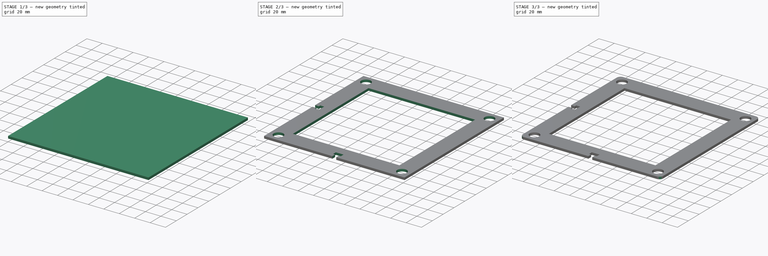
[diagram: build sequence overview — one tinted view per stage of 3, left to right]
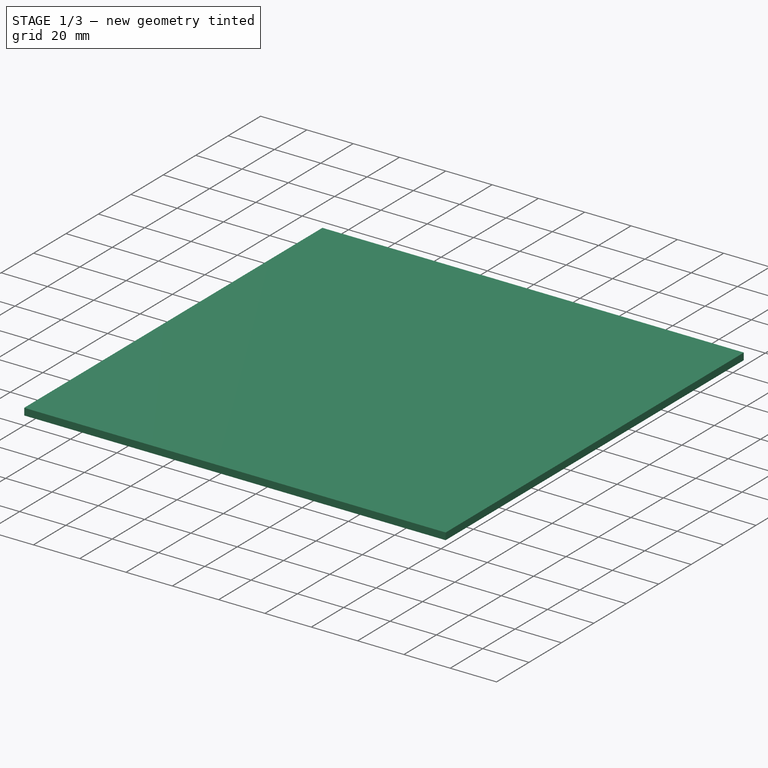
[diagram: stage 1 of 3 — iso view after this stage's code; geometry added in this stage tinted green]
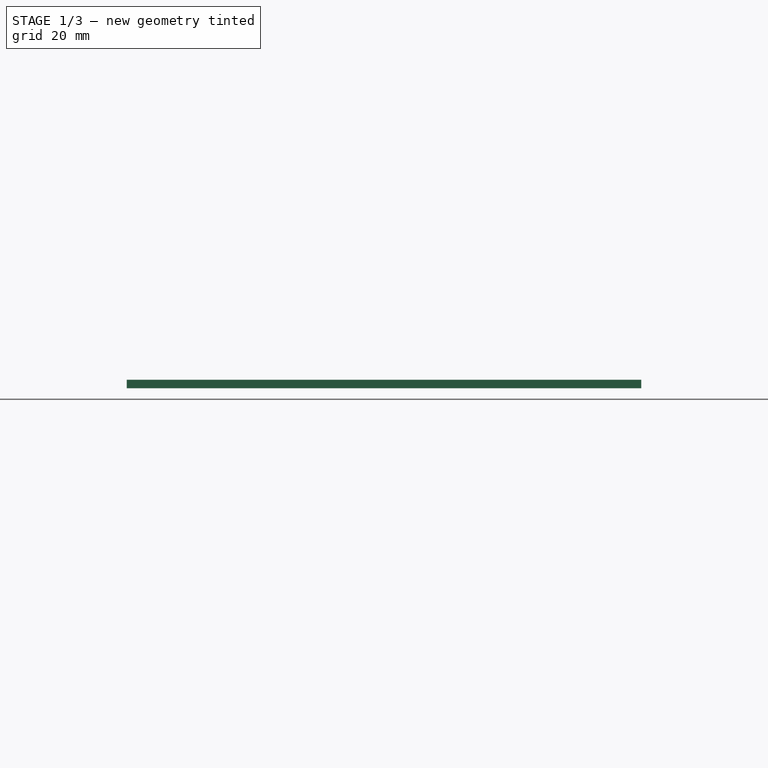
[diagram: stage 1 of 3 — front view after this stage's code; geometry added in this stage tinted green]
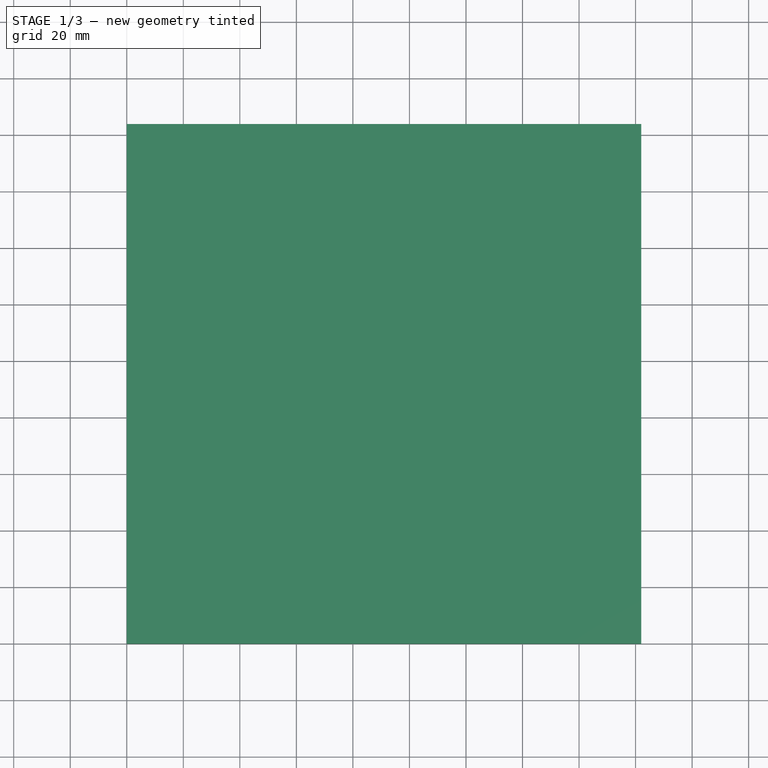
[diagram: stage 1 of 3 — top view after this stage's code; geometry added in this stage tinted green]
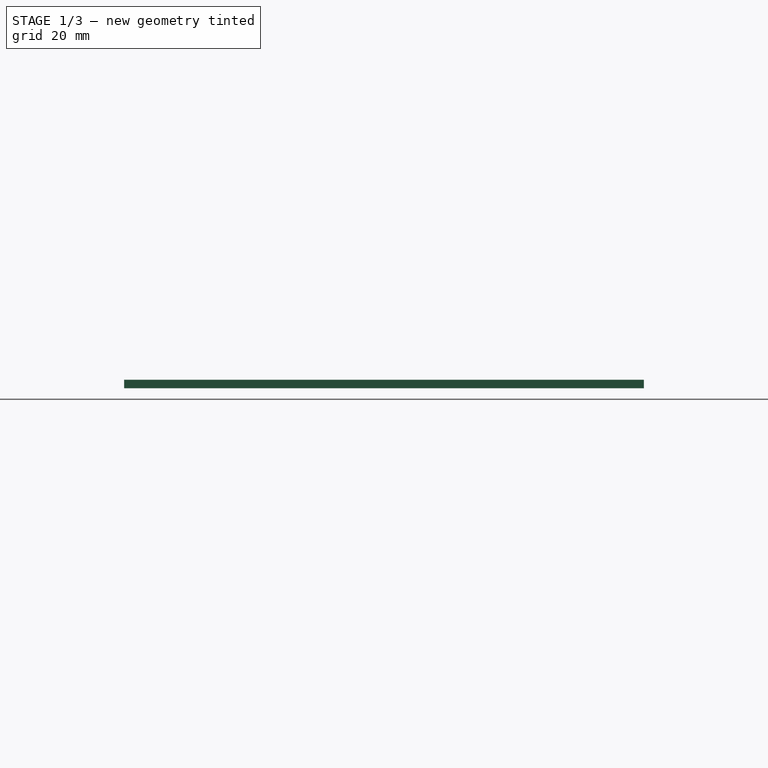
[diagram: stage 1 of 3 — right view after this stage's code; geometry added in this stage tinted green]
FCSTD DOCUMENT  (FreeCAD 0.17R13541 (Git))
Label: PrintingLayout
License: Other
LicenseURL: https://www.gnu.org/licenses/gpl-2.0.html
objects: Part::Feature×13, Sketcher::SketchObject×3, PartDesign::Pocket×3, Part::MultiFuse×2, Part::FeaturePython×2, PartDesign::Body×2, Part::Box×1, PartDesign::FeatureBase×1, Part::Fillet×1
note: 31 computed .brp shape members not serialized (recipe doc carries the construction recipe); baked Part::Feature solids carry a one-line shape summary decoded from their .brp

FEATURE [Part::Box] Box  label="Cube"
  AttacherType = Attacher::AttachEngine3D
  Height = 3
  Length = 182
  Width = 183.9
FEATURE [PartDesign::FeatureBase] BaseFeature
  BaseFeature = -> Box
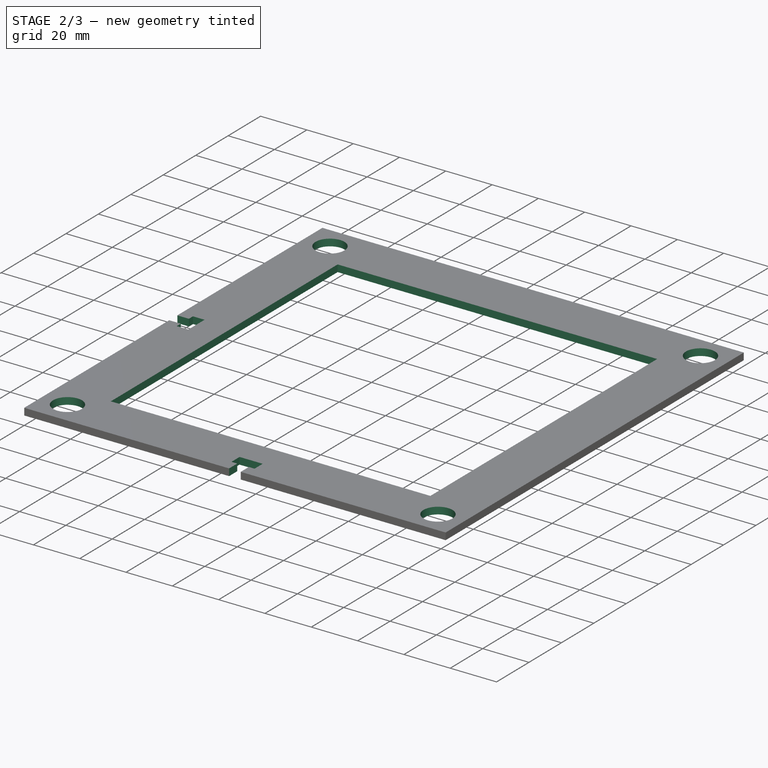
[diagram: stage 2 of 3 — iso view after this stage's code; geometry added in this stage tinted green]
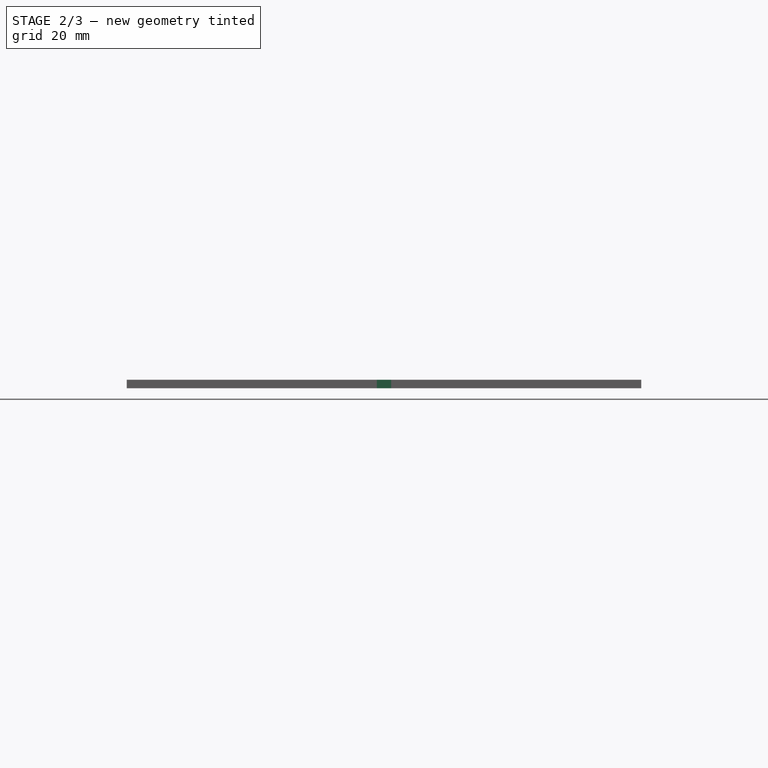
[diagram: stage 2 of 3 — front view after this stage's code; geometry added in this stage tinted green]
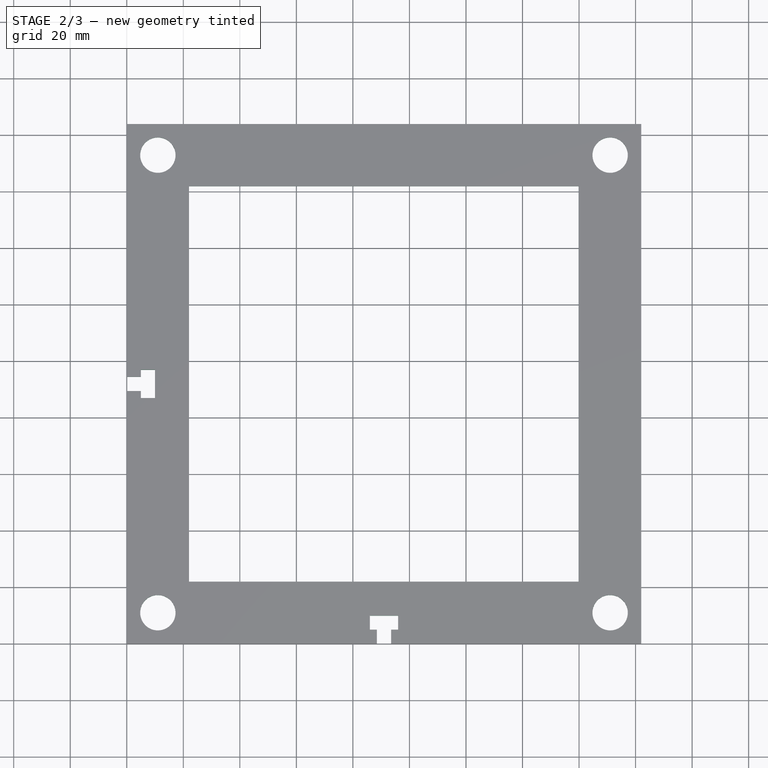
[diagram: stage 2 of 3 — top view after this stage's code; geometry added in this stage tinted green]
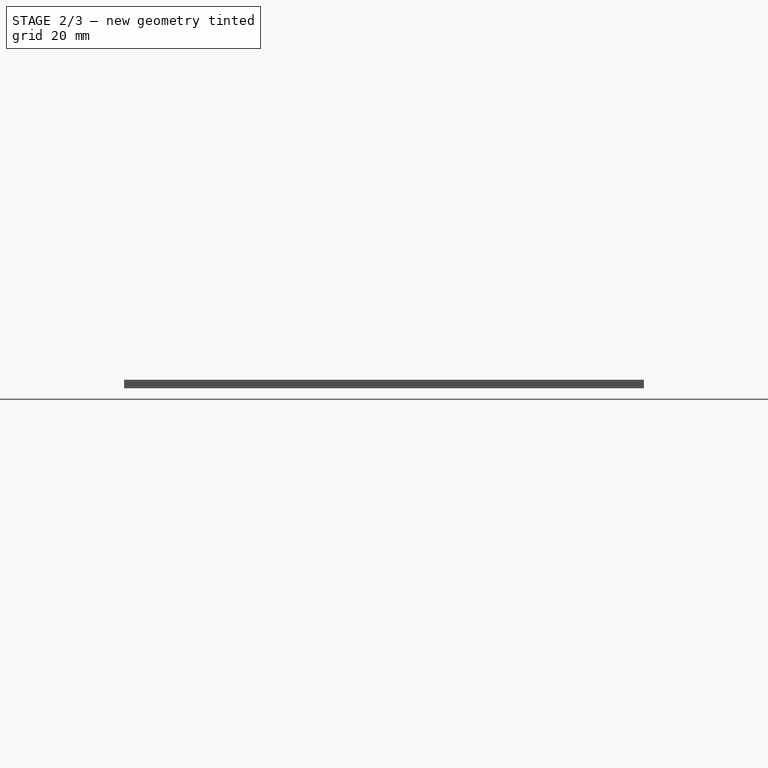
[diagram: stage 2 of 3 — right view after this stage's code; geometry added in this stage tinted green]
FEATURE [Sketcher::SketchObject] Sketch
  ExternalGeometry = -> [BaseFeature]
  MapMode = 5
  Placement = pos=(0,0,3) rot=(0,0,1;0rad)
  Support = -> [BaseFeature]
  sketch-geometry (30):
    g0: GeomPoint X=11 Y=172.9 Z=0
    g1: GeomPoint X=171 Y=172.9 Z=0
    g2: GeomPoint X=11 Y=11 Z=0
    g3: GeomPoint X=171 Y=11 Z=0
    g4: Circle CenterX=171 CenterY=172.9 CenterZ=0 NormalX=0 NormalY=0 NormalZ=1 AngleXU=0 Radius=6.25
    g5: Circle CenterX=11 CenterY=172.9 CenterZ=0 NormalX=0 NormalY=0 NormalZ=1 AngleXU=0 Radius=6.25
    g6: Circle CenterX=11 CenterY=11 CenterZ=0 NormalX=0 NormalY=0 NormalZ=1 AngleXU=0 Radius=6.25
    g7: Circle CenterX=171 CenterY=11 CenterZ=0 NormalX=0 NormalY=0 NormalZ=1 AngleXU=0 Radius=6.25
    g8: LineSegment StartX=22 StartY=161.9 StartZ=0 EndX=22 EndY=22 EndZ=0
    g9: LineSegment StartX=22 StartY=22 StartZ=0 EndX=160 EndY=22 EndZ=0
    g10: LineSegment StartX=160 StartY=22 StartZ=0 EndX=160 EndY=161.9 EndZ=0
    g11: LineSegment StartX=160 StartY=161.9 StartZ=0 EndX=22 EndY=161.9 EndZ=0
    g12: GeomPoint X=0 Y=91.95 Z=0
    g13: GeomPoint X=91 Y=0 Z=0
    g14: LineSegment StartX=0 StartY=89.45 StartZ=0 EndX=0 EndY=94.45 EndZ=0
    g15: LineSegment StartX=0 StartY=94.45 StartZ=0 EndX=5 EndY=94.45 EndZ=0
    g16: LineSegment StartX=5 StartY=94.45 StartZ=0 EndX=5 EndY=96.95 EndZ=0
    g17: LineSegment StartX=5 StartY=96.95 StartZ=0 EndX=10 EndY=96.95 EndZ=0
    g18: LineSegment StartX=10 StartY=96.95 StartZ=0 EndX=10 EndY=86.95 EndZ=0
    g19: LineSegment StartX=10 StartY=86.95 StartZ=0 EndX=5 EndY=86.95 EndZ=0
    g20: LineSegment StartX=5 StartY=86.95 StartZ=0 EndX=5 EndY=89.45 EndZ=0
    g21: LineSegment StartX=5 StartY=89.45 StartZ=0 EndX=0 EndY=89.45 EndZ=0
    g22: LineSegment StartX=93.5 StartY=0 StartZ=0 EndX=88.5 EndY=0 EndZ=0
    g23: LineSegment StartX=88.5 StartY=0 StartZ=0 EndX=88.5 EndY=5 EndZ=0
    g24: LineSegment StartX=88.5 StartY=5 StartZ=0 EndX=86 EndY=5 EndZ=0
    g25: LineSegment StartX=86 StartY=5 StartZ=0 EndX=86 EndY=10 EndZ=0
    g26: LineSegment StartX=86 StartY=10 StartZ=0 EndX=96 EndY=10 EndZ=0
    g27: LineSegment StartX=96 StartY=10 StartZ=0 EndX=96 EndY=5 EndZ=0
    g28: LineSegment StartX=96 StartY=5 StartZ=0 EndX=93.5 EndY=5 EndZ=0
    g29: LineSegment StartX=93.5 StartY=5 StartZ=0 EndX=93.5 EndY=0 EndZ=0
  constraints (78):
    c: DistanceX(g1,g-5) = 11
    c: DistanceY(g1,g-5) = 11
    c: Coincident(g1,g4)
    c: DistanceY(g-6,g3) = 11
    c: DistanceX(g3,g-6) = 11
    c: DistanceX(g-1,g2) = 11
    c: DistanceY(g-1,g2) = 11
    c: DistanceX(g-4,g0) = 11
    c: DistanceY(g0,g-4) = 11
    c: Coincident(g5,g0)
    c: Radius(g5) = 6.25
    c: Coincident(g6,g2)
    c: Coincident(g7,g3)
    c: Coincident(g8,g9)
    c: Coincident(g9,g10)
    c: Coincident(g10,g11)
    c: Coincident(g11,g8)
    c: DistanceY(g8,g0) = 11
    c: DistanceX(g0,g8) = 11
    c: DistanceX(g10,g1) = 11
    c: DistanceY(g10,g1) = 11
    c: DistanceY(g2,g8) = 11
    c: DistanceX(g2,g8) = 11
    c: DistanceX(g9,g3) = 11
    c: DistanceY(g3,g9) = 11
    c: Equal(g5,g4)
    c: Equal(g4,g6)
    c: Equal(g6,g7)
    c: Symmetric(g-1,g-4,g12)
    c: Symmetric(g-1,g-6,g13)
    c: Coincident(g14,g15)
    c: Coincident(g15,g16)
    c: Vertical(g16)
    c: Coincident(g16,g17)
    c: Coincident(g17,g18)
    c: Vertical(g18)
    c: Coincident(g18,g19)
    c: Horizontal(g19)
    c: Coincident(g19,g20)
    c: Coincident(g20,g21)
    c: Coincident(g21,g14)
    c: Horizontal(g21)
    c: PointOnObject(g14,g-4)
    c: PointOnObject(g14,g-4)
    c: Equal(g21,g15)
    c: Equal(g19,g17)
    c: Horizontal(g17)
    c: Symmetric(g14,g14,g12)
    c: Coincident(g22,g23)
    c: Coincident(g23,g24)
    c: Coincident(g24,g25)
    c: Coincident(g25,g26)
    c: Coincident(g26,g27)
    c: Coincident(g27,g28)
    c: Coincident(g28,g29)
    c: Coincident(g29,g22)
    c: Horizontal(g26)
    c: Vertical(g27)
    c: Vertical(g25)
    c: Vertical(g29)
    c: Vertical(g23)
    c: Horizontal(g22)
    c: Horizontal(g28)
    c: Horizontal(g24)
    c: Equal(g27,g25)
    c: Equal(g29,g23)
    c: Equal(g28,g24)
    c: DistanceY(g27,g27) = 5
    c: DistanceY(g29,g29) = 5
    c: DistanceX(g26,g26) = 10
    c: DistanceX(g22,g22) = 5
    c: Symmetric(g22,g22,g13)
    c: Equal(g16,g20)
    c: DistanceX(g15,g15) = 5
    c: DistanceX(g17,g17) = 5
    c: DistanceY(g18,g18) = 10
    c: DistanceY(g14,g14) = 5
    c: Vertical(g20)
FEATURE [PartDesign::Pocket] Pocket
  BaseFeature = -> BaseFeature
  Length = 5
  Length2 = 100
  Profile = -> Sketch
  Type = 1
FEATURE [Part::Feature] path5215
  shape: bbox 3.575 x 6.158 x 2.133e-07 mm, 1 faces, 0 solids (baked)
FEATURE [Part::Feature] path5215001
  shape: bbox 8.492 x 6.158 x 2.133e-07 mm, 1 faces, 0 solids (baked)
FEATURE [Part::Feature] path5215002
  shape: bbox 15.48 x 6.158 x 2.133e-07 mm, 1 faces, 0 solids (baked)
FEATURE [Part::Feature] path5215003
  shape: bbox 67.73 x 6.158 x 2.133e-07 mm, 1 faces, 0 solids (baked)
FEATURE [Part::Feature] path5215004
  shape: bbox 29.31 x 6.158 x 2.133e-07 mm, 1 faces, 0 solids (baked)
FEATURE [Part::Feature] path5215005
  shape: bbox 4.886 x 6.158 x 2.133e-07 mm, 1 faces, 0 solids (baked)
FEATURE [Part::MultiFuse] Fusion
  Placement = pos=(36.6,-79,3) rot=(0,0,1;1.5708rad)
  Shapes = -> [path5215005,path5215004,path5215003,path5215002,path5215001,path5215]
FEATURE [Part::FeaturePython] Scale  # Draft clone (typed FeaturePython)
  Fuse = false
  Objects = -> [Fusion]
  Placement = pos=(27.3,22.1,3) rot=(0,0,1;0rad)
  Scale = (0.3,0.3,1)
FEATURE [Part::FeaturePython] Scale001  # Draft clone (typed FeaturePython)
  Fuse = false
  Objects = -> [Scale]
  Placement = pos=(163.8,39.3,5) rot=(0,0,1;0rad)
  Scale = (0.7,0.7,1)
FEATURE [Sketcher::SketchObject] Sketch001
  sketch-geometry (33):
    g0: BSplineCurve PolesCount=4 KnotsCount=2 Degree=3 IsPeriodic=0
    g1: BSplineCurve PolesCount=4 KnotsCount=2 Degree=3 IsPeriodic=0
    g2: BSplineCurve PolesCount=4 KnotsCount=2 Degree=3 IsPeriodic=0
    g3: BSplineCurve PolesCount=4 KnotsCount=2 Degree=3 IsPeriodic=0
    g4: BSplineCurve PolesCount=2 KnotsCount=2 Degree=1 IsPeriodic=0
    g5: BSplineCurve PolesCount=4 KnotsCount=2 Degree=3 IsPeriodic=0
    g6: BSplineCurve PolesCount=4 KnotsCount=2 Degree=3 IsPeriodic=0
    g7: BSplineCurve PolesCount=2 KnotsCount=2 Degree=1 IsPeriodic=0
    g8: BSplineCurve PolesCount=4 KnotsCount=2 Degree=3 IsPeriodic=0
    g9: BSplineCurve PolesCount=4 KnotsCount=2 Degree=3 IsPeriodic=0
    g10: BSplineCurve PolesCount=2 KnotsCount=2 Degree=1 IsPeriodic=0
    g11: BSplineCurve PolesCount=4 KnotsCount=2 Degree=3 IsPeriodic=0
    g12: BSplineCurve PolesCount=4 KnotsCount=2 Degree=3 IsPeriodic=0
    g13: BSplineCurve PolesCount=4 KnotsCount=2 Degree=3 IsPeriodic=0
    g14: BSplineCurve PolesCount=2 KnotsCount=2 Degree=1 IsPeriodic=0
    g15: BSplineCurve PolesCount=4 KnotsCount=2 Degree=3 IsPeriodic=0
    g16: BSplineCurve PolesCount=4 KnotsCount=2 Degree=3 IsPeriodic=0
    g17: BSplineCurve PolesCount=4 KnotsCount=2 Degree=3 IsPeriodic=0
    g18: BSplineCurve PolesCount=2 KnotsCount=2 Degree=1 IsPeriodic=0
    g19: BSplineCurve PolesCount=4 KnotsCount=2 Degree=3 IsPeriodic=0
    g20: BSplineCurve PolesCount=2 KnotsCount=2 Degree=1 IsPeriodic=0
    g21: BSplineCurve PolesCount=4 KnotsCount=2 Degree=3 IsPeriodic=0
    g22: BSplineCurve PolesCount=2 KnotsCount=2 Degree=1 IsPeriodic=0
    g23: BSplineCurve PolesCount=4 KnotsCount=2 Degree=3 IsPeriodic=0
    g24: BSplineCurve PolesCount=2 KnotsCount=2 Degree=1 IsPeriodic=0
    g25: BSplineCurve PolesCount=4 KnotsCount=2 Degree=3 IsPeriodic=0
    g26: BSplineCurve PolesCount=2 KnotsCount=2 Degree=1 IsPeriodic=0
    g27: BSplineCurve PolesCount=4 KnotsCount=2 Degree=3 IsPeriodic=0
    g28: BSplineCurve PolesCount=4 KnotsCount=2 Degree=3 IsPeriodic=0
    g29: BSplineCurve PolesCount=2 KnotsCount=2 Degree=1 IsPeriodic=0
    g30: BSplineCurve PolesCount=4 KnotsCount=2 Degree=3 IsPeriodic=0
    g31: BSplineCurve PolesCount=4 KnotsCount=2 Degree=3 IsPeriodic=0
    g32: BSplineCurve PolesCount=2 KnotsCount=2 Degree=1 IsPeriodic=0
  constraints (33):
    c: Coincident(g0,g1)
    c: Coincident(g1,g2)
    c: Coincident(g2,g3)
    c: Coincident(g3,g4)
    c: Coincident(g4,g0)
    c: Coincident(g5,g6)
    c: Coincident(g6,g7)
    c: Coincident(g7,g8)
    c: Coincident(g8,g9)
    c: Coincident(g9,g10)
    c: Coincident(g10,g5)
    c: Coincident(g11,g12)
    c: Coincident(g12,g13)
    c: Coincident(g13,g14)
    c: Coincident(g14,g15)
    c: Coincident(g15,g16)
    c: Coincident(g16,g17)
    c: Coincident(g17,g18)
    c: Coincident(g18,g11)
    c: Coincident(g19,g20)
    c: Coincident(g20,g21)
    c: Coincident(g21,g22)
    c: Coincident(g22,g19)
    c: Coincident(g23,g24)
    c: Coincident(g24,g25)
    c: Coincident(g25,g26)
    c: Coincident(g26,g23)
    c: Coincident(g27,g28)
    c: Coincident(g28,g29)
    c: Coincident(g29,g30)
    c: Coincident(g30,g31)
    c: Coincident(g31,g32)
    c: Coincident(g32,g27)
FEATURE [PartDesign::Body] Body001  label="FilletBody"
  Origin = -> Origin001
FEATURE [Part::Feature] path4484
  shape: bbox 1.422 x 3.473 x 2e-07 mm, 0 faces, 0 solids (baked)
FEATURE [Part::Feature] path4484001
  shape: bbox 3.248 x 5.093 x 2e-07 mm, 0 faces, 0 solids (baked)
FEATURE [Part::Feature] path4484002
  shape: bbox 1.396 x 3.44 x 2e-07 mm, 0 faces, 0 solids (baked)
FEATURE [Part::Feature] path4486
  shape: bbox 2.653 x 5.012 x 2e-07 mm, 0 faces, 0 solids (baked)
FEATURE [Part::Feature] path4488
  shape: bbox 2.433 x 0.5108 x 2e-07 mm, 0 faces, 0 solids (baked)
FEATURE [Part::Feature] path4490
  shape: bbox 3.52 x 4.932 x 2e-07 mm, 0 faces, 0 solids (baked)
FEATURE [Part::Feature] path4490001
  shape: bbox 1.073 x 2.242 x 2e-07 mm, 0 faces, 0 solids (baked)
FEATURE [Part::MultiFuse] Fusion001
  Placement = pos=(78,46.5,0) rot=(0,1,0;3.14159rad)
  Shapes = -> [path4490001,path4490,path4488,path4486,path4484002,path4484001,path4484]
FEATURE [Sketcher::SketchObject] Sketch002
  sketch-geometry (75):
    g0: BSplineCurve PolesCount=2 KnotsCount=2 Degree=1 IsPeriodic=0
    g1: BSplineCurve PolesCount=2 KnotsCount=2 Degree=1 IsPeriodic=0
    g2: BSplineCurve PolesCount=2 KnotsCount=2 Degree=1 IsPeriodic=0
    g3: BSplineCurve PolesCount=2 KnotsCount=2 Degree=1 IsPeriodic=0
    g4: BSplineCurve PolesCount=2 KnotsCount=2 Degree=1 IsPeriodic=0
    g5: BSplineCurve PolesCount=2 KnotsCount=2 Degree=1 IsPeriodic=0
    g6: BSplineCurve PolesCount=2 KnotsCount=2 Degree=1 IsPeriodic=0
    g7: BSplineCurve PolesCount=2 KnotsCount=2 Degree=1 IsPeriodic=0
    g8: BSplineCurve PolesCount=2 KnotsCount=2 Degree=1 IsPeriodic=0
    g9: BSplineCurve PolesCount=2 KnotsCount=2 Degree=1 IsPeriodic=0
    g10: BSplineCurve PolesCount=2 KnotsCount=2 Degree=1 IsPeriodic=0
    g11: BSplineCurve PolesCount=2 KnotsCount=2 Degree=1 IsPeriodic=0
    g12: BSplineCurve PolesCount=2 KnotsCount=2 Degree=1 IsPeriodic=0
    g13: BSplineCurve PolesCount=2 KnotsCount=2 Degree=1 IsPeriodic=0
    g14: BSplineCurve PolesCount=2 KnotsCount=2 Degree=1 IsPeriodic=0
    g15: BSplineCurve PolesCount=3 KnotsCount=2 Degree=2 IsPeriodic=0
    g16: BSplineCurve PolesCount=3 KnotsCount=2 Degree=2 IsPeriodic=0
    g17: BSplineCurve PolesCount=3 KnotsCount=2 Degree=2 IsPeriodic=0
    g18: BSplineCurve PolesCount=3 KnotsCount=2 Degree=2 IsPeriodic=0
    g19: BSplineCurve PolesCount=3 KnotsCount=2 Degree=2 IsPeriodic=0
    g20: BSplineCurve PolesCount=3 KnotsCount=2 Degree=2 IsPeriodic=0
    g21: BSplineCurve PolesCount=3 KnotsCount=2 Degree=2 IsPeriodic=0
    g22: BSplineCurve PolesCount=3 KnotsCount=2 Degree=2 IsPeriodic=0
    g23: BSplineCurve PolesCount=3 KnotsCount=2 Degree=2 IsPeriodic=0
    g24: BSplineCurve PolesCount=3 KnotsCount=2 Degree=2 IsPeriodic=0
    g25: BSplineCurve PolesCount=3 KnotsCount=2 Degree=2 IsPeriodic=0
    g26: BSplineCurve PolesCount=3 KnotsCount=2 Degree=2 IsPeriodic=0
    g27: BSplineCurve PolesCount=3 KnotsCount=2 Degree=2 IsPeriodic=0
    g28: BSplineCurve PolesCount=2 KnotsCount=2 Degree=1 IsPeriodic=0
    g29: BSplineCurve PolesCount=2 KnotsCount=2 Degree=1 IsPeriodic=0
    g30: BSplineCurve PolesCount=2 KnotsCount=2 Degree=1 IsPeriodic=0
    g31: BSplineCurve PolesCount=2 KnotsCount=2 Degree=1 IsPeriodic=0
    g32: BSplineCurve PolesCount=2 KnotsCount=2 Degree=1 IsPeriodic=0
    g33: BSplineCurve PolesCount=2 KnotsCount=2 Degree=1 IsPeriodic=0
    g34: BSplineCurve PolesCount=3 KnotsCount=2 Degree=2 IsPeriodic=0
    g35: BSplineCurve PolesCount=3 KnotsCount=2 Degree=2 IsPeriodic=0
    g36: BSplineCurve PolesCount=3 KnotsCount=2 Degree=2 IsPeriodic=0
    g37: BSplineCurve PolesCount=3 KnotsCount=2 Degree=2 IsPeriodic=0
    g38: BSplineCurve PolesCount=3 KnotsCount=2 Degree=2 IsPeriodic=0
    g39: BSplineCurve PolesCount=3 KnotsCount=2 Degree=2 IsPeriodic=0
    g40: BSplineCurve PolesCount=3 KnotsCount=2 Degree=2 IsPeriodic=0
    g41: BSplineCurve PolesCount=3 KnotsCount=2 Degree=2 IsPeriodic=0
    g42: BSplineCurve PolesCount=2 KnotsCount=2 Degree=1 IsPeriodic=0
    g43: BSplineCurve PolesCount=2 KnotsCount=2 Degree=1 IsPeriodic=0
    g44: BSplineCurve PolesCount=3 KnotsCount=2 Degree=2 IsPeriodic=0
    g45: BSplineCurve PolesCount=3 KnotsCount=2 Degree=2 IsPeriodic=0
    g46: BSplineCurve PolesCount=3 KnotsCount=2 Degree=2 IsPeriodic=0
    g47: BSplineCurve PolesCount=3 KnotsCount=2 Degree=2 IsPeriodic=0
    g48: BSplineCurve PolesCount=3 KnotsCount=2 Degree=2 IsPeriodic=0
    g49: BSplineCurve PolesCount=3 KnotsCount=2 Degree=2 IsPeriodic=0
    g50: BSplineCurve PolesCount=3 KnotsCount=2 Degree=2 IsPeriodic=0
    g51: BSplineCurve PolesCount=3 KnotsCount=2 Degree=2 IsPeriodic=0
    g52: BSplineCurve PolesCount=3 KnotsCount=2 Degree=2 IsPeriodic=0
    g53: BSplineCurve PolesCount=3 KnotsCount=2 Degree=2 IsPeriodic=0
    g54: BSplineCurve PolesCount=3 KnotsCount=2 Degree=2 IsPeriodic=0
    g55: BSplineCurve PolesCount=3 KnotsCount=2 Degree=2 IsPeriodic=0
    g56: BSplineCurve PolesCount=3 KnotsCount=2 Degree=2 IsPeriodic=0
    g57: BSplineCurve PolesCount=3 KnotsCount=2 Degree=2 IsPeriodic=0
    g58: BSplineCurve PolesCount=3 KnotsCount=2 Degree=2 IsPeriodic=0
    g59: BSplineCurve PolesCount=3 KnotsCount=2 Degree=2 IsPeriodic=0
    g60: BSplineCurve PolesCount=3 KnotsCount=2 Degree=2 IsPeriodic=0
    g61: BSplineCurve PolesCount=3 KnotsCount=2 Degree=2 IsPeriodic=0
    g62: BSplineCurve PolesCount=3 KnotsCount=2 Degree=2 IsPeriodic=0
    g63: BSplineCurve PolesCount=3 KnotsCount=2 Degree=2 IsPeriodic=0
    g64: BSplineCurve PolesCount=3 KnotsCount=2 Degree=2 IsPeriodic=0
    g65: BSplineCurve PolesCount=3 KnotsCount=2 Degree=2 IsPeriodic=0
    g66: BSplineCurve PolesCount=3 KnotsCount=2 Degree=2 IsPeriodic=0
    g67: BSplineCurve PolesCount=3 KnotsCount=2 Degree=2 IsPeriodic=0
    g68: BSplineCurve PolesCount=3 KnotsCount=2 Degree=2 IsPeriodic=0
    g69: BSplineCurve PolesCount=3 KnotsCount=2 Degree=2 IsPeriodic=0
    g70: BSplineCurve PolesCount=3 KnotsCount=2 Degree=2 IsPeriodic=0
    g71: BSplineCurve PolesCount=3 KnotsCount=2 Degree=2 IsPeriodic=0
    g72: BSplineCurve PolesCount=3 KnotsCount=2 Degree=2 IsPeriodic=0
    g73: BSplineCurve PolesCount=2 KnotsCount=2 Degree=1 IsPeriodic=0
    g74: BSplineCurve PolesCount=3 KnotsCount=2 Degree=2 IsPeriodic=0
  constraints (75):
    c: Coincident(g0,g1)
    c: Coincident(g1,g2)
    c: Coincident(g2,g0)
    c: Coincident(g3,g4)
    c: Coincident(g4,g5)
    c: Coincident(g5,g6)
    c: Coincident(g6,g7)
    c: Coincident(g7,g8)
    c: Coincident(g8,g9)
    c: Coincident(g9,g10)
    c: Coincident(g10,g3)
    c: Coincident(g11,g12)
    c: Coincident(g12,g13)
    c: Coincident(g13,g14)
    c: Coincident(g14,g11)
    c: Coincident(g15,g16)
    c: Coincident(g16,g17)
    c: Coincident(g17,g18)
    c: Coincident(g18,g19)
    c: Coincident(g19,g20)
    c: Coincident(g20,g21)
    c: Coincident(g21,g22)
    c: Coincident(g22,g23)
    c: Coincident(g23,g24)
    c: Coincident(g24,g25)
    c: Coincident(g25,g26)
    c: Coincident(g26,g27)
    c: Coincident(g27,g28)
    c: Coincident(g28,g29)
    c: Coincident(g29,g30)
    c: Coincident(g30,g31)
    c: Coincident(g31,g32)
    c: Coincident(g32,g33)
    c: Coincident(g33,g34)
    c: Coincident(g34,g35)
    c: Coincident(g35,g36)
    c: Coincident(g36,g37)
    c: Coincident(g37,g38)
    c: Coincident(g38,g39)
    c: Coincident(g39,g40)
    c: Coincident(g40,g41)
    c: Coincident(g41,g42)
    c: Coincident(g42,g15)
    c: Coincident(g43,g44)
    c: Coincident(g44,g45)
    c: Coincident(g45,g46)
    c: Coincident(g46,g47)
    c: Coincident(g47,g48)
    c: Coincident(g48,g43)
    c: Coincident(g49,g50)
    c: Coincident(g50,g51)
    c: Coincident(g51,g52)
    c: Coincident(g52,g53)
    c: Coincident(g53,g54)
    c: Coincident(g54,g55)
    c: Coincident(g55,g56)
    c: Coincident(g56,g57)
    c: Coincident(g57,g58)
    c: Coincident(g58,g59)
    c: Coincident(g59,g60)
    c: Coincident(g60,g61)
    c: Coincident(g61,g62)
    c: Coincident(g62,g63)
    c: Coincident(g63,g64)
    c: Coincident(g64,g65)
    c: Coincident(g65,g66)
    c: Coincident(g66,g67)
    c: Coincident(g67,g68)
    c: Coincident(g68,g49)
    c: Coincident(g69,g70)
    c: Coincident(g70,g71)
    c: Coincident(g71,g72)
    c: Coincident(g72,g73)
    c: Coincident(g73,g74)
    c: Coincident(g74,g69)
FEATURE [PartDesign::Pocket] Pocket001
  BaseFeature = -> Pocket
  Length = 1
  Length2 = 100
  Profile = -> Sketch001
  Reversed = true
  Type = 0
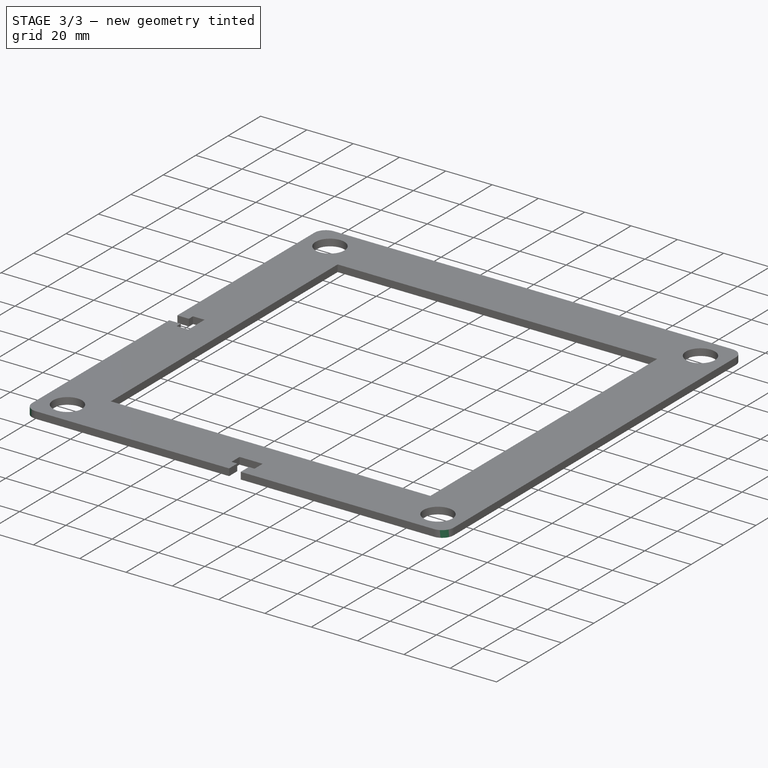
[diagram: stage 3 of 3 — iso view after this stage's code; geometry added in this stage tinted green]
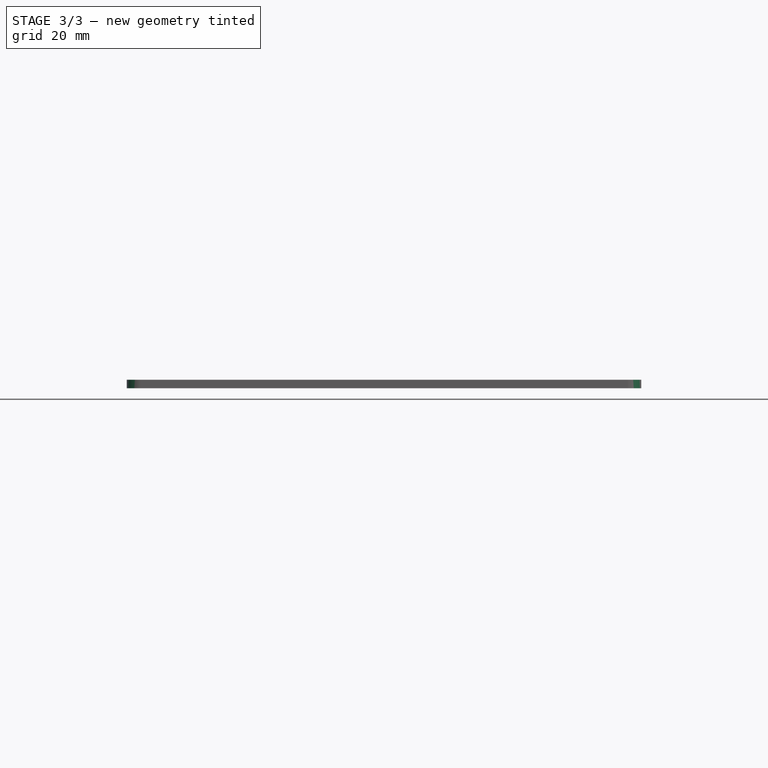
[diagram: stage 3 of 3 — front view after this stage's code; geometry added in this stage tinted green]
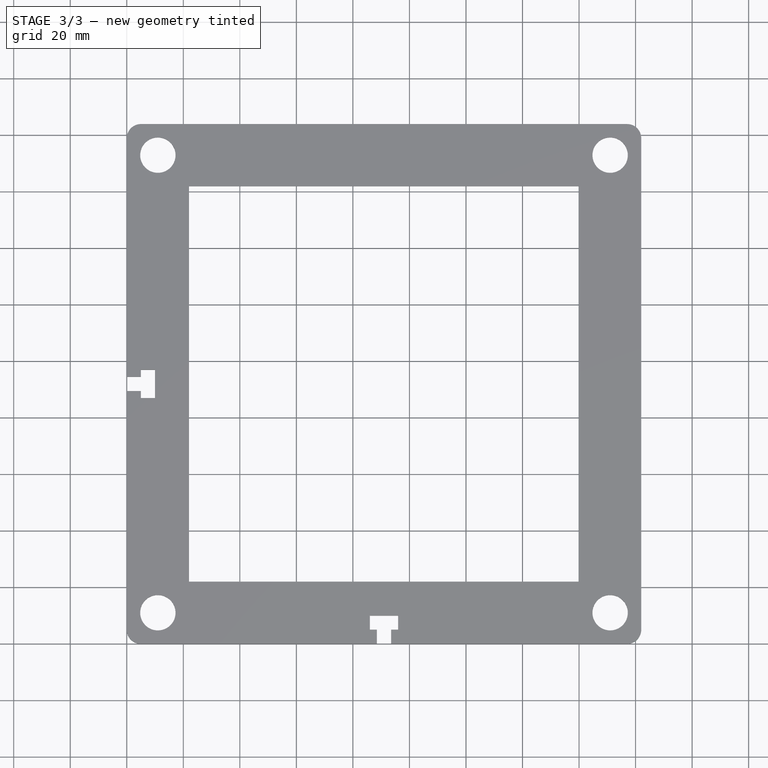
[diagram: stage 3 of 3 — top view after this stage's code; geometry added in this stage tinted green]
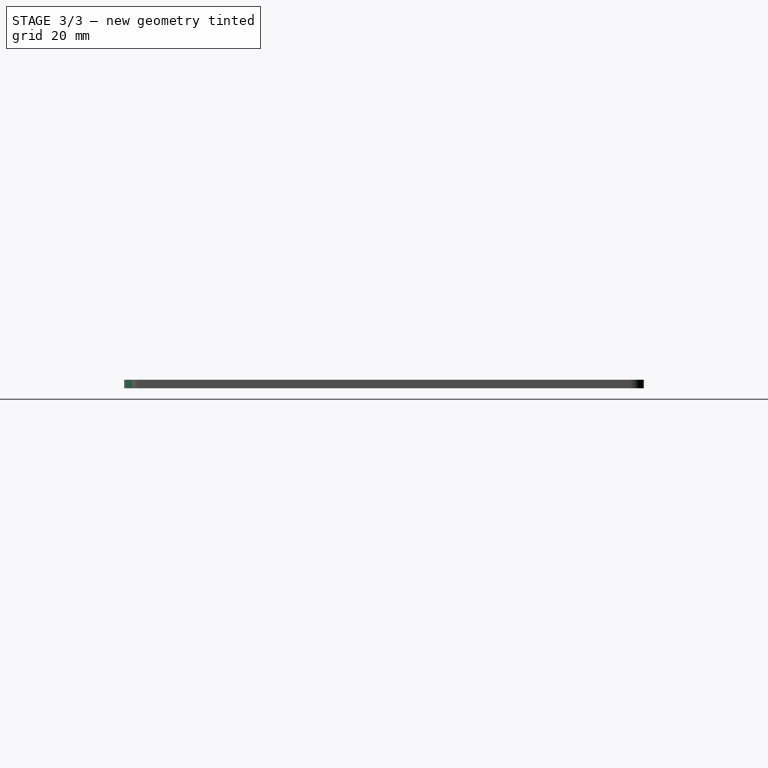
[diagram: stage 3 of 3 — right view after this stage's code; geometry added in this stage tinted green]
FEATURE [PartDesign::Pocket] Pocket002
  BaseFeature = -> Pocket001
  Length = 1
  Length2 = 100
  Profile = -> Sketch002
  Reversed = true
  Type = 0
FEATURE [PartDesign::Body] Body
  BaseFeature = -> Box
  Group = -> [BaseFeature,Sketch,Pocket,Sketch001,Sketch002,Pocket001,Pocket002]
  Origin = -> Origin
  Tip = -> Pocket002
FEATURE [Part::Fillet] Fillet
  Base = -> Pocket002
  Edges = 4 edges r=5: [Edge4,Edge160,Edge161,Edge162]
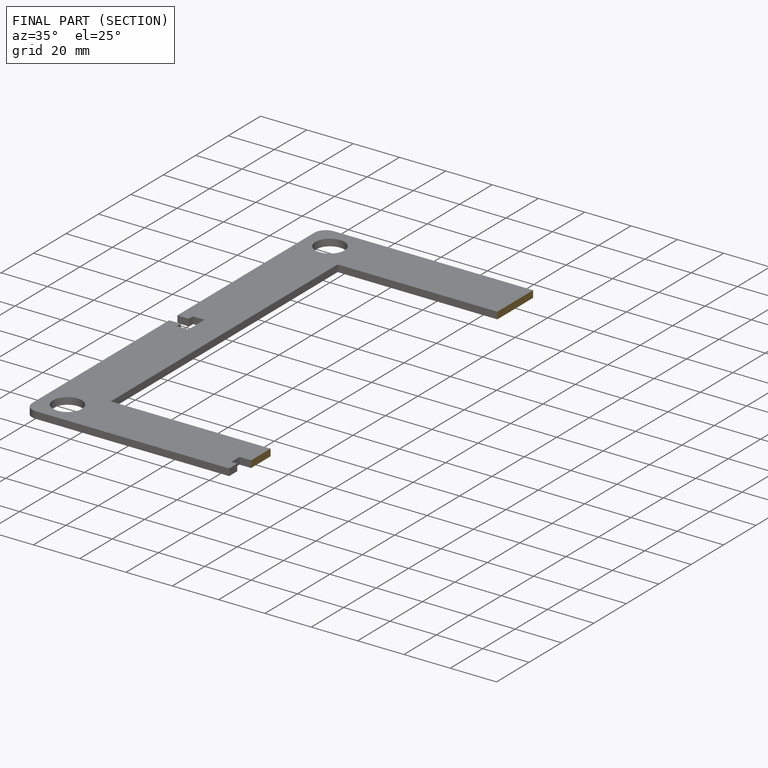
[diagram: finished part — half-section view (interior)]
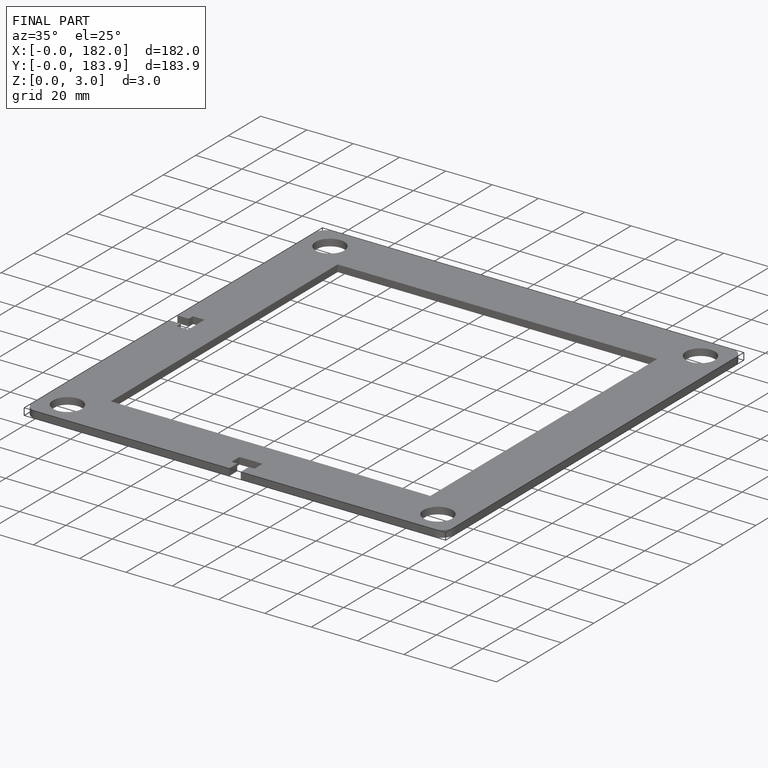
[diagram: finished part — iso view with bounding-box wireframe]
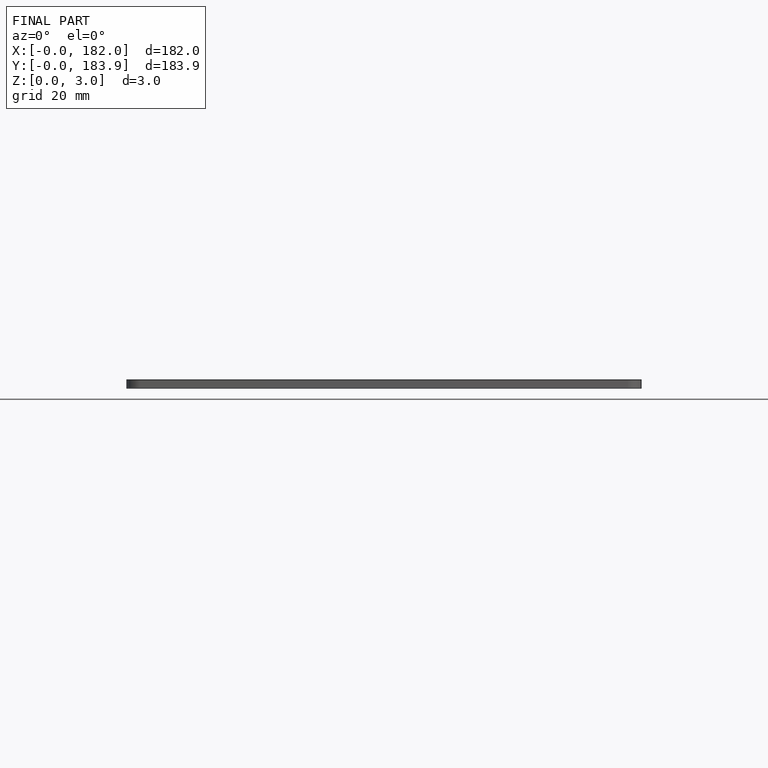
[diagram: finished part — front view with bounding-box wireframe]
